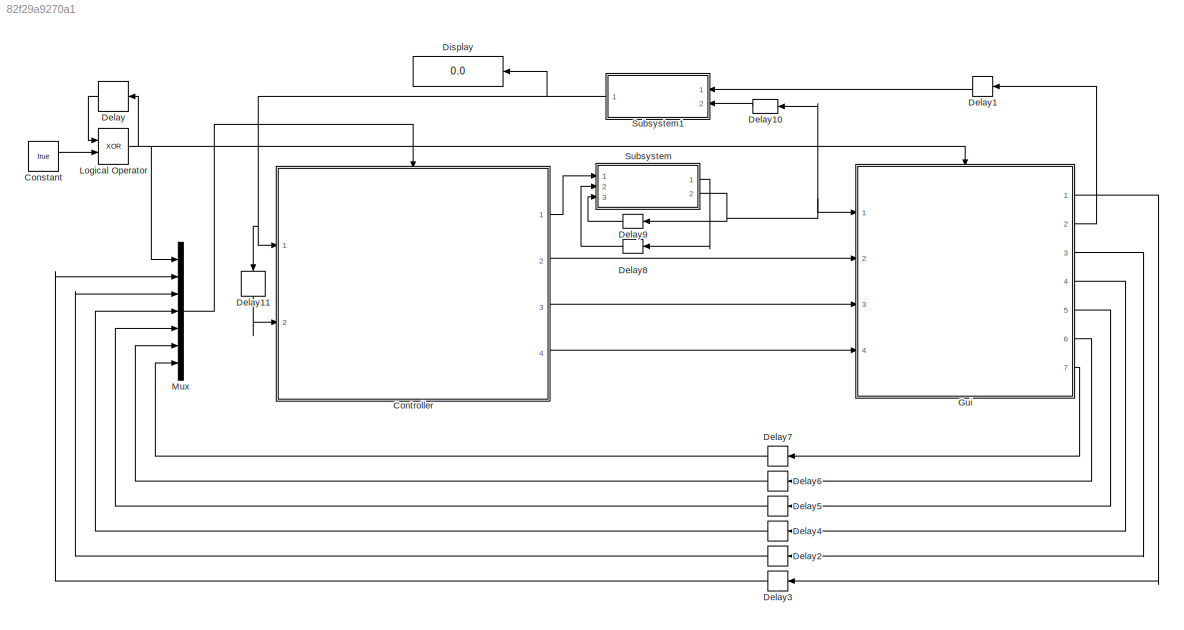
MODEL slx_82f29a9270a1
KIND model
CONFIG AbsTol = auto
CONFIG EnableMultiTasking = off
CONFIG FixedStep = 0.001
CONFIG MaxStep = auto
CONFIG MinStep = auto
CONFIG RelTol = 1e-3
CONFIG SampleTimeConstraint = Unconstrained
CONFIG Solver = FixedStepAuto
CONFIG SolverName = FixedStepAuto
CONFIG StartTime = 0.0
CONFIG StopTime = inf
BLOCK [Constant] Constant
  OutDataTypeStr = boolean
  Value = true
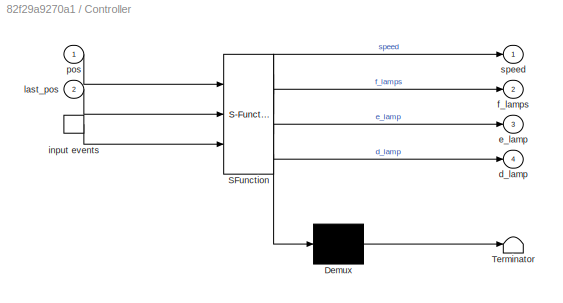
BLOCK [SubSystem] Controller
  ErrorFcn = Stateflow.Translate.translate
  PermitHierarchicalResolution = ExplicitOnly
  Ports = [2, 4, 0, 1]
  RequestExecContextInheritance = off
  SFBlockType = Chart
  TreatAsAtomicUnit = on
BLOCK [Demux] Controller/ Demux 
  Outputs = 1
  Ports = [1, 1]
BLOCK [S-Function] Controller/ SFunction 
  EnableBusSupport = on
  FunctionName = sf_sfun
  PortCounts = [3 5]
  Ports = [3, 5]
  SFcnIsStateOwnerBlock = off
  SFunctionDeploymentMode = off
  Tag = Stateflow S-Function 3
BLOCK [Terminator] Controller/ Terminator 
BLOCK [Outport] Controller/d_lamp
  Port = 4
BLOCK [Outport] Controller/e_lamp
  Port = 3
BLOCK [Outport] Controller/f_lamps
  Port = 2
BLOCK [TriggerPort] Controller/input events
  Ports = [0, 1]
  ShowOutputPort = on
  StatesWhenEnabling = held
  VariantControl = (inherit)
BLOCK [Inport] Controller/last_pos
  Port = 2
BLOCK [Inport] Controller/pos
BLOCK [Outport] Controller/speed
BLOCK [Delay] Delay
  DelayLength = 1
  InputPortMap = u0
  NameLocation = top
  Ports = [1, 1]
BLOCK [Delay] Delay1
  InputPortMap = u0
  NameLocation = top
  Ports = [1, 1]
BLOCK [Delay] Delay10
  DelayLength = 1
  InitialCondition = 1
  InputPortMap = u0
  NameLocation = top
  Ports = [1, 1]
BLOCK [Delay] Delay11
  DelayLength = 1
  InputPortMap = u0
  NameLocation = left
  Ports = [1, 1]
BLOCK [Delay] Delay2
  InputPortMap = u0
  NameLocation = top
  Ports = [1, 1]
BLOCK [Delay] Delay3
  InputPortMap = u0
  NameLocation = top
  Ports = [1, 1]
BLOCK [Delay] Delay4
  InputPortMap = u0
  NameLocation = top
  Ports = [1, 1]
BLOCK [Delay] Delay5
  InputPortMap = u0
  NameLocation = top
  Ports = [1, 1]
BLOCK [Delay] Delay6
  InputPortMap = u0
  NameLocation = top
  Ports = [1, 1]
BLOCK [Delay] Delay7
  InputPortMap = u0
  NameLocation = top
  Ports = [1, 1]
BLOCK [Delay] Delay8
  DelayLength = 1
  InputPortMap = u0
  NameLocation = top
  Ports = [1, 1]
BLOCK [Delay] Delay9
  DelayLength = 1
  InitialCondition = 1
  InputPortMap = u0
  NameLocation = top
  Ports = [1, 1]
BLOCK [Display] Display
  Decimation = 1
  NameLocation = top
  Ports = [1]
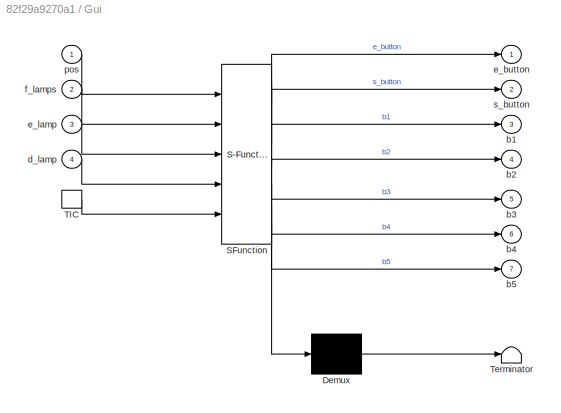
BLOCK [SubSystem] Gui
  ErrorFcn = Stateflow.Translate.translate
  PermitHierarchicalResolution = ExplicitOnly
  Ports = [4, 7, 0, 1]
  RequestExecContextInheritance = off
  SFBlockType = Chart
  TreatAsAtomicUnit = on
BLOCK [Demux] Gui/ Demux 
  Outputs = 1
  Ports = [1, 1]
BLOCK [S-Function] Gui/ SFunction 
  EnableBusSupport = on
  FunctionName = sf_sfun
  PortCounts = [5 8]
  Ports = [5, 8]
  SFcnIsStateOwnerBlock = off
  SFunctionDeploymentMode = off
  Tag = Stateflow S-Function 1
BLOCK [Terminator] Gui/ Terminator 
BLOCK [TriggerPort] Gui/TIC
  Ports = [0, 1]
  ShowOutputPort = on
  StatesWhenEnabling = held
  VariantControl = (inherit)
BLOCK [Outport] Gui/b1
  Port = 3
BLOCK [Outport] Gui/b2
  Port = 4
BLOCK [Outport] Gui/b3
  Port = 5
BLOCK [Outport] Gui/b4
  Port = 6
BLOCK [Outport] Gui/b5
  Port = 7
BLOCK [Inport] Gui/d_lamp
  Port = 4
BLOCK [Outport] Gui/e_button
BLOCK [Inport] Gui/e_lamp
  Port = 3
BLOCK [Inport] Gui/f_lamps
  Port = 2
BLOCK [Inport] Gui/pos
BLOCK [Outport] Gui/s_button
  Port = 2
BLOCK [Logic] Logical Operator
  AllPortsSameDT = off
  Operator = XOR
  OutDataTypeStr = boolean
  Ports = [2, 1]
BLOCK [Mux] Mux
  DisplayOption = bar
  Inputs = 7
  Ports = [7, 1]
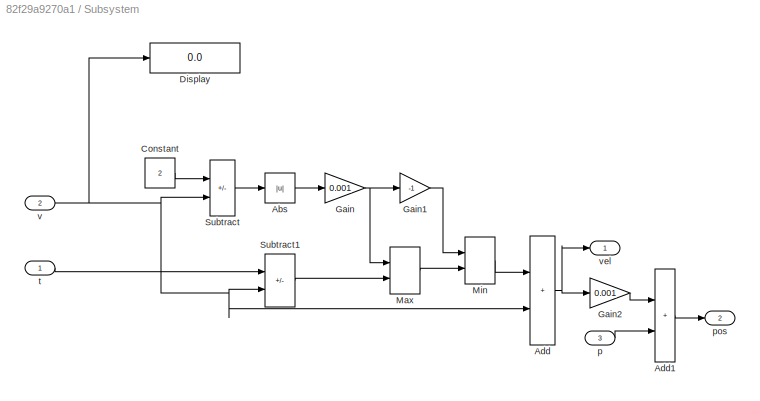
BLOCK [SubSystem] Subsystem
  Ports = [3, 2]
  RequestExecContextInheritance = off
BLOCK [Abs] Subsystem/Abs
  SaturateOnIntegerOverflow = off
BLOCK [Sum] Subsystem/Add
  IconShape = rectangular
  Ports = [2, 1]
BLOCK [Sum] Subsystem/Add1
  IconShape = rectangular
  Ports = [2, 1]
BLOCK [Constant] Subsystem/Constant
  Value = 2
BLOCK [Display] Subsystem/Display
  Decimation = 1
  Ports = [1]
BLOCK [Gain] Subsystem/Gain
  Gain = 0.001
BLOCK [Gain] Subsystem/Gain1
  Gain = -1
BLOCK [Gain] Subsystem/Gain2
  Gain = 0.001
BLOCK [MinMax] Subsystem/Max
  Inputs = 2
  Ports = [2, 1]
BLOCK [MinMax] Subsystem/Min
  Function = max
  Inputs = 2
  Ports = [2, 1]
BLOCK [Sum] Subsystem/Subtract
  IconShape = rectangular
  Inputs = +-
  Ports = [2, 1]
BLOCK [Sum] Subsystem/Subtract1
  IconShape = rectangular
  Inputs = +-
  Ports = [2, 1]
BLOCK [Inport] Subsystem/p
  Port = 3
BLOCK [Outport] Subsystem/pos
  Port = 2
BLOCK [Inport] Subsystem/t
BLOCK [Inport] Subsystem/v
  Port = 2
BLOCK [Outport] Subsystem/vel
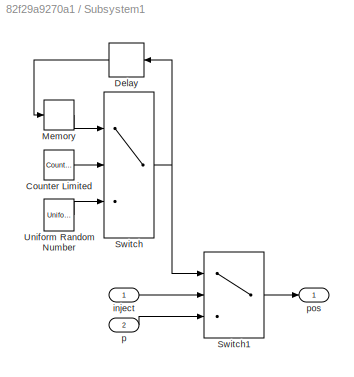
BLOCK [SubSystem] Subsystem1
  NameLocation = top
  Ports = [2, 1]
  RequestExecContextInheritance = off
BLOCK [Reference] Subsystem1/Counter Limited  REF=simulink/Sources/Counter
Limited
  Ports = [0, 1]
  SourceBlock = simulink/Sources/Counter\nLimited
  SourceProductBaseCode = SL
  SourceType = Counter Limited
BLOCK [Delay] Subsystem1/Delay
  DelayLength = 1
  InputPortMap = u0
  NameLocation = top
  Ports = [1, 1]
BLOCK [Memory] Subsystem1/Memory
BLOCK [Switch] Subsystem1/Switch
  InputSameDT = off
  SaturateOnIntegerOverflow = off
  Threshold = 10
BLOCK [Switch] Subsystem1/Switch1
  Criteria = u2 > Threshold
  InputSameDT = off
  SaturateOnIntegerOverflow = off
BLOCK [UniformRandomNumber] Subsystem1/Uniform Random Number
  Maximum = 5
  Minimum = 0
  SampleTime = 0.001
BLOCK [Inport] Subsystem1/inject
BLOCK [Inport] Subsystem1/p
  Port = 2
BLOCK [Outport] Subsystem1/pos
LINE Constant:1 -> Logical Operator:2
LINE Controller:1 -> Subsystem:1
LINE Controller:2 -> Gui:2
LINE Controller:3 -> Gui:3
LINE Controller:4 -> Gui:4
LINE Delay10:1 -> Subsystem1:2
LINE Delay11:1 -> Controller:2
LINE Delay1:1 -> Subsystem1:1
LINE Delay2:1 -> Mux:3
LINE Delay3:1 -> Mux:2
LINE Delay4:1 -> Mux:4
LINE Delay5:1 -> Mux:5
LINE Delay6:1 -> Mux:6
LINE Delay7:1 -> Mux:7
LINE Delay8:1 -> Subsystem:2
LINE Delay9:1 -> Subsystem:3
LINE Delay:1 -> Logical Operator:1
LINE Gui:1 -> Delay3:1
LINE Gui:2 -> Delay1:1
LINE Gui:3 -> Delay2:1
LINE Gui:4 -> Delay4:1
LINE Gui:5 -> Delay5:1
LINE Gui:6 -> Delay6:1
LINE Gui:7 -> Delay7:1
NET Logical Operator:1 -> Delay:1, Gui:trigger, Mux:1
LINE Mux:1 -> Controller:trigger
LINE Subsystem/Abs:1 -> Subsystem/Gain:1
LINE Subsystem/Add1:1 -> Subsystem/pos:1
NET Subsystem/Add:1 -> Subsystem/Gain2:1, Subsystem/vel:1
LINE Subsystem/Constant:1 -> Subsystem/Subtract:1
LINE Subsystem/Gain1:1 -> Subsystem/Min:1
LINE Subsystem/Gain2:1 -> Subsystem/Add1:1
NET Subsystem/Gain:1 -> Subsystem/Gain1:1, Subsystem/Max:1
LINE Subsystem/Max:1 -> Subsystem/Min:2
LINE Subsystem/Min:1 -> Subsystem/Add:1
LINE Subsystem/Subtract1:1 -> Subsystem/Max:2
LINE Subsystem/Subtract:1 -> Subsystem/Abs:1
LINE Subsystem/p:1 -> Subsystem/Add1:2
LINE Subsystem/t:1 -> Subsystem/Subtract1:1
NET Subsystem/v:1 -> Subsystem/Add:2, Subsystem/Display:1, Subsystem/Subtract1:2, Subsystem/Subtract:2
LINE Subsystem1/Counter Limited:1 -> Subsystem1/Switch:2
LINE Subsystem1/Delay:1 -> Subsystem1/Memory:1
LINE Subsystem1/Memory:1 -> Subsystem1/Switch:1
LINE Subsystem1/Switch1:1 -> Subsystem1/pos:1
NET Subsystem1/Switch:1 -> Subsystem1/Delay:1, Subsystem1/Switch1:1
LINE Subsystem1/Uniform Random Number:1 -> Subsystem1/Switch:3
LINE Subsystem1/inject:1 -> Subsystem1/Switch1:2
LINE Subsystem1/p:1 -> Subsystem1/Switch1:3
NET Subsystem1:1 -> Controller:1, Delay11:1, Display:1
LINE Subsystem:1 -> Delay8:1
NET Subsystem:2 -> Delay10:1, Delay9:1, Gui:1
note: NET lines group one-source signal fan-out (src -> all destinations, sorted); 1:1 wires keep LINE
CHART Gui states=25 transitions=24
  STATE_LABEL 'Gui\nen: ml.mk_figure(); ml.mk_controls();\ndu: \nml.set_lights(f_lamps, d_lamp, e_lamp);\nml.move_lift(pos);\n'
  STATE_LABEL 'Button4'
  STATE_LABEL 'On\nen: b4 = 1;'
  STATE_LABEL 'Off\nen: b4 = 0;'
  STATE_LABEL '[ml.get_state(4)]'
  STATE_LABEL '[f_lamps[3] > 0]\n/{ml.set_state(4,0);}'
  STATE_LABEL 'Button5'
  STATE_LABEL 'On\nen: b5 = 1;'
  STATE_LABEL 'Off\nen: b5 = 0;'
  STATE_LABEL '[ml.get_state(5)]'
  STATE_LABEL '[f_lamps[4] > 0]\n/{ml.set_state(5,0);}'
  STATE_LABEL 'Button3'
  STATE_LABEL 'On\nen: b3 = 1;'
  STATE_LABEL 'Off\nen: b3 = 0;'
  STATE_LABEL '[ml.get_state(3)]'
  STATE_LABEL '[f_lamps[2] > 0]\n/{ml.set_state(3,0);}'
  STATE_LABEL 'Doors'
  STATE_LABEL 'On\nen: ml.set_door(1);'
  STATE_LABEL 'Closed\nen: ml.set_door(0);'
  STATE_LABEL '[d_lamp == 1]'
  STATE_LABEL '[d_lamp == 0]'
  STATE_LABEL 'Button2'
  STATE_LABEL 'On\nen: b2 = 1;'
  STATE_LABEL 'Off\nen: b2 = 0;'
  STATE_LABEL '[ml.get_state(2)]'
  STATE_LABEL '[f_lamps[1] > 0]\n/{ml.set_state(2,0);}'
  STATE_LABEL 'ButtonS'
  STATE_LABEL 'On\nen: s_button = 1;\n      ml.inject(1);'
  STATE_LABEL 'Off\nen: s_button = 0;\n     ml.inject(0);'
  STATE_LABEL '[ml.get_state(ST)]\n{ml.set_state(ST,0);}'
  STATE_LABEL '[ml.get_state(ST)]\n{ml.set_state(ST,0);}'
  STATE_LABEL 'Button1'
  STATE_LABEL 'On\nen: b1 = 1;'
  STATE_LABEL 'Off\nen: b1 = 0;'
  STATE_LABEL '[ml.get_state(1)]'
  STATE_LABEL '[f_lamps[0] > 0]\n/{ml.set_state(1,0);}'
  STATE_LABEL 'ButtonE'
  STATE_LABEL 'On\nen: e_button = 1;'
  STATE_LABEL 'Off\nen: e_button = 0;'
  STATE_LABEL '[ml.get_state(EM)]\n/{last_estate = e_lamp;}'
CHART Controller states=20 transitions=28
  STATE_LABEL 'ControlModule'
  STATE_LABEL 'FloorButton'
  STATE_LABEL 'Buttons'
  STATE_LABEL 'B1 /{lamp_state(1); Button}'
  STATE_LABEL 'B5 /{lamp_state(5); \n       Button}'
  STATE_LABEL 'B2 /{lamp_state(2);\n        Button}'
  STATE_LABEL 'B3 /{lamp_state(3); Button}'
  STATE_LABEL 'B4 /{lamp_state(4);\n        Button}'
  STATE_LABEL 'Controller\n'
  STATE_LABEL 'Normal'
  STATE_LABEL 'Moving\n'
  STATE_LABEL 'FullSpeed'
  STATE_LABEL 'Break\ndu: speed = target - pos;'
  STATE_LABEL '[ab(pos - target) < 0.4]'
  STATE_LABEL 'Idle\nen: speed = 0;'
  STATE_LABEL 'Plan\nen:\nplan();\nspeed = direction * MAX_SPEED;'
  STATE_LABEL 'Doors\nen: \nf_lamps[target-1] = LAMP_HERE;\nd_lamp = 1;'
  STATE_LABEL 'DoorWait'
  STATE_LABEL '[sumlamps() > 0]'
  STATE_LABEL '[at_floor() != target]'
  STATE_LABEL 'Button'
  STATE_LABEL 'Button'
  STATE_LABEL '[target < 1]'
  STATE_LABEL '[d_lamp]'
  STATE_LABEL '[after(5, sec)] \n/{d_lamp = 0;\n  f_lamps[target-1] = LAMP_OFF;}'
  STATE_LABEL '[at_floor() == target && speed == 0]'
  STATE_LABEL '[at_floor() == target] \n/{speed = 0;}'
  STATE_LABEL '[after(0.5,sec)]'
  STATE_LABEL 'y = at_floor'
  STATE_LABEL 'SCRIPT:\n% calculate which floor the elevator is on\n% if elevator not at a floor, return -1\nfunction y = at_floor()\n    %y = -1;\n    %for k = 1:FLOORS\n    %    if abs(pos - k) < 0.01\n    %        y = k;\n    %        return;\n    %    end\n    nearest = round(pos);\n    if abs(pos - nearest) < 0.02\n        y = nearest;\n    else\n        y = -1;\n    end\nend\n'
  STATE_LABEL 'Emergency\nen:\ne_lamp = 1;\nspeed = 0;'
  STATE_LABEL 'WaitForRelease'
  STATE_LABEL 'Stabilize'
  STATE_LABEL '[after(5, sec)]'
  STATE_LABEL '[ab(pos - last_pos) > POS_FAULT]'
  STATE_LABEL '[ab(pos - last_pos) > POS_FAULT]'
  STATE_LABEL 'plan'
  STATE_LABEL 'SCRIPT:\n% set target of elevator, and update the floor state\n% since the lamps colour is based on floor state, why not use that?\nfunction plan()\n    old_target = target;    % used to set state of old target from Target to On\n    % if currently going up, prioritise the up direction\n    if direction > 0\n        if look_up(old_target)\n            % nothing up, look down\n            if look_down(old_t...<+2431ch>'
  STATE_LABEL 'Emergency[d_lamp == 1] \n/{e_lamp = 0;}'
  STATE_LABEL 'Emergency[d_lamp == 0] \n/{e_lamp = 0;}'
CHART  states=0 transitions=0
CHART  states=0 transitions=0
